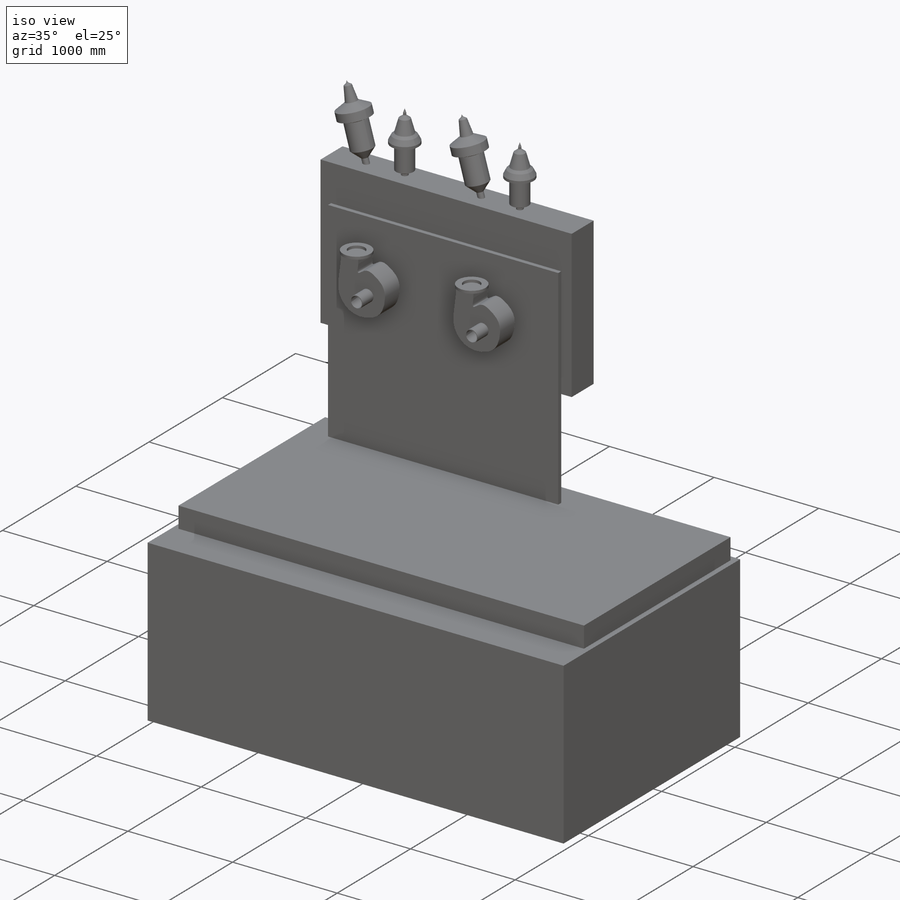
[diagram: iso view]
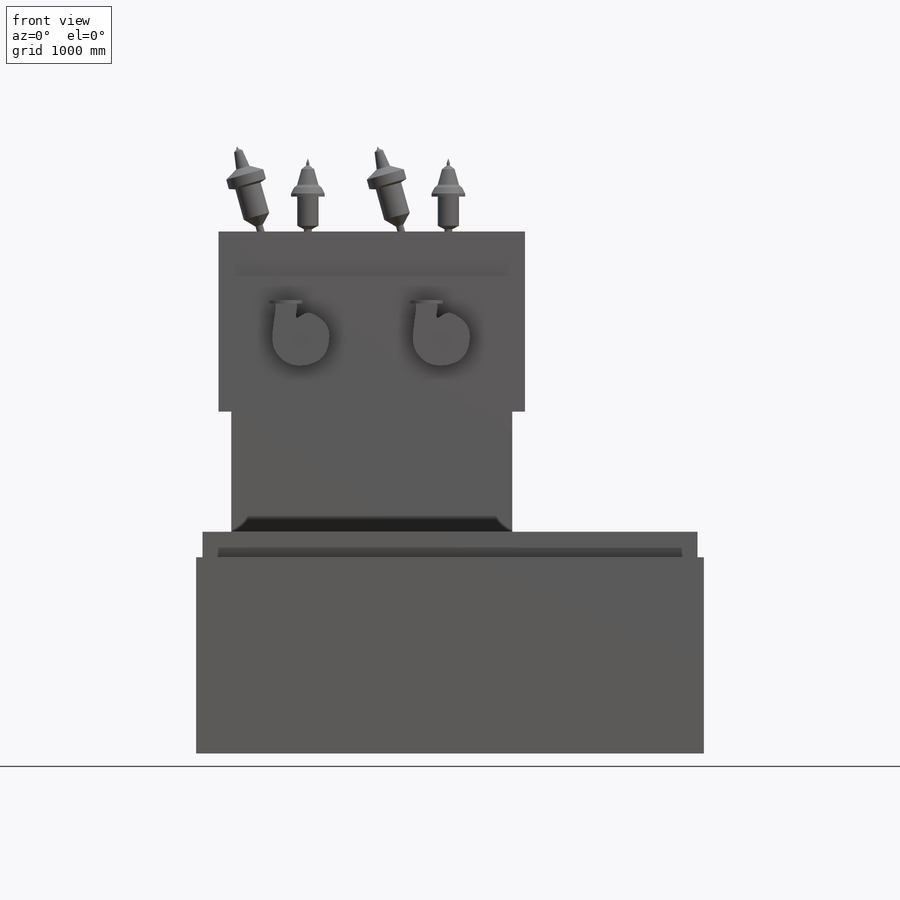
[diagram: front view]
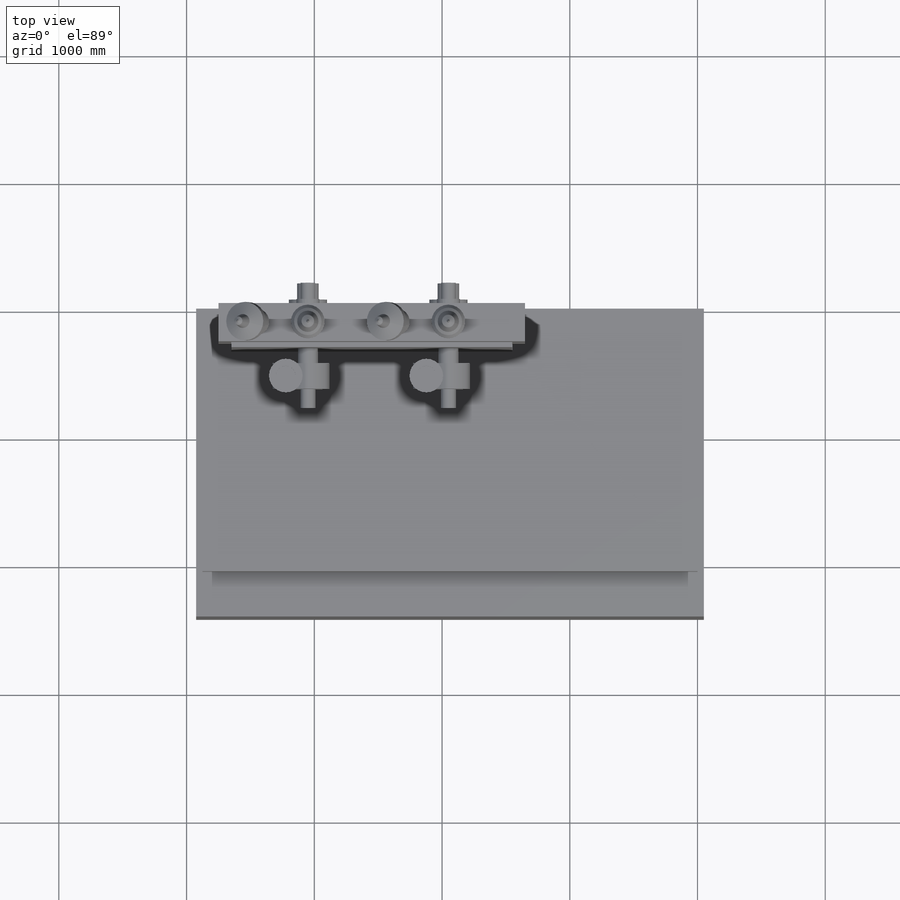
[diagram: top view]
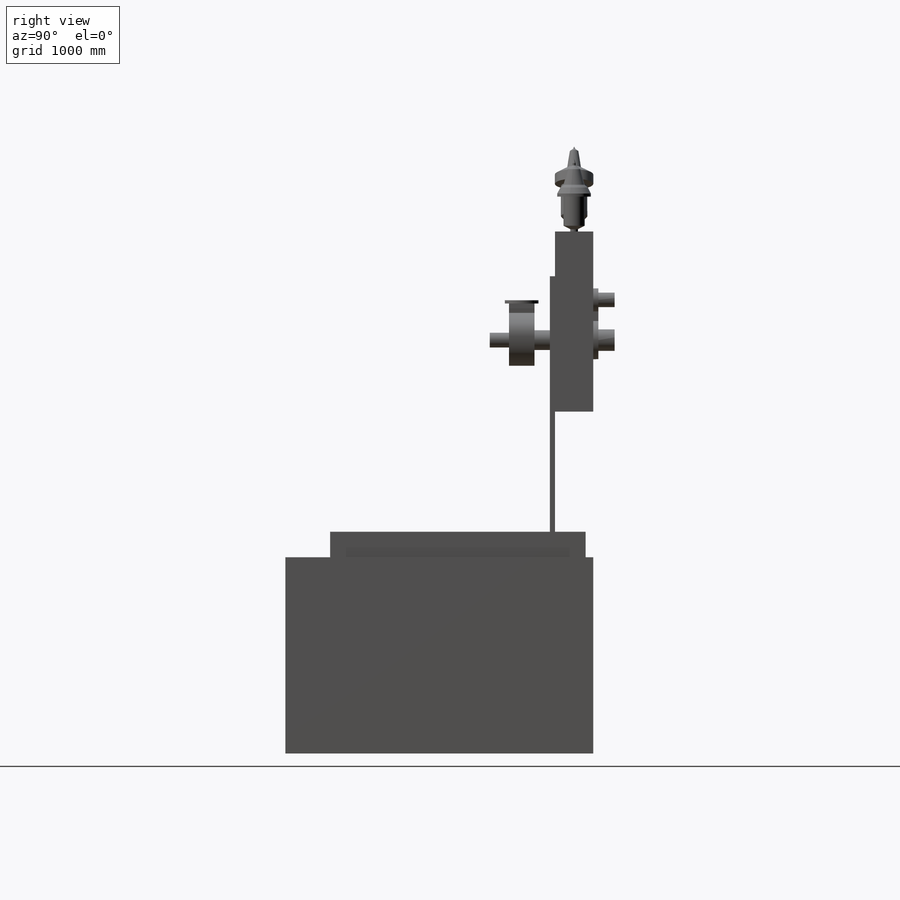
[diagram: right view]
SOLIDWORKS PART (.sldprt)
format: sldprt  version: not decoded by parser v0  size: 581,120 bytes
history: native  units: mm
features: sketch x15, extrude x13, revolve x2, pattern_linear x2, material x1, shell x1, plane x1 (+16 scaffold rows collapsed)
feature tree (51):
  scaffold x16  (default folders/planes/origin — collapsed)
  material  "Material <not specified>"
  sketch  "Sketch1"  dims[D1=100.0mm D2=3975.0mm D3=3050.0mm]
  extrude  "Extrude1"  Depth=2410mm
  sketch  "Sketch2"  dims[D1=60.0mm D2=50.0mm D3=50.0mm D4=2000.0mm]
  extrude  "Extrude2"  Depth=200mm
  sketch  "Sketch3"  dims[c1.D1=1410.0mm c1.D2=2400.0mm c1.D3=1350.0mm c1.D4=1700.0mm c1.D5=850.0mm c2.D4=1500.0mm]
  extrude  "Extrude3"  Depth=300mm
  shell  "Shell1"  Thickness=10mm
  sketch  "Sketch4"  dims[D1=100.0mm D2=100.0mm D3=350.0mm]
  extrude  "Extrude4"  Depth=40mm
  sketch  "Sketch5"  dims[D2=500.0mm D5=250.0mm D1=850.0mm D3=1700.0mm D4=315.0mm D6=1500.0mm]
  extrude  "Extrude5"  Depth=30mm
  sketch  "Sketch6"  dims[c1.D1=~1836.58115mm c1.D2=2115.0mm c2.D1=~813.41885mm c2.D2=~278.41885mm c3.D1=~278.41885mm]
  extrude  "Extrude6"  Depth=250mm
  sketch  "Sketch7"  dims[c1.D1=~149.41296mm c1.D2=~90.335637mm c2.D1=550.0mm c2.D2=865.0mm c2.D3=30.0mm c2.D4=15.0mm c2.D5=535.0mm c2.D6=315.0mm]
  extrude  "Extrude7"  Depth=50mm
  sketch  "Sketch8"  dims[D1=168.0mm D2=154.0mm D3=114.3mm D4=97.2mm]
  extrude  "Extrude8"  Depth=127mm
  plane  "Plane1"  Offset=150mm
  sketch  "Sketch9"
  revolve  "Revolve2"  Angle=360deg
  sketch  "Sketch10"  dims[c1.D1=390.0mm c1.D2=~32.484919mm c1.D3=~1055.120513mm c1.D4=~1675.749642mm c1.D5=~73.951281mm c2.D5=~179.84091deg]
  revolve  "Revolve3"  Angle=360deg
  pattern_linear  "LPattern1"  Count1=2 Count2=1 Spacing1=1100mm Spacing2=10mm
  sketch  "Sketch11"
  extrude  "Extrude9"  Depth=530mm
  sketch  "Sketch12"
  extrude  "Extrude10"  Depth=200mm
  sketch  "Sketch13"  dims[D1=114.8mm D2=5.6mm]
  extrude  "Extrude11"  Depth=150mm
  sketch  "Sketch14"  dims[D1=154.0mm]
  extrude  "Extrude12"  Depth=25mm
  pattern_linear  "LPattern2"  Count1=2 Count2=1 Spacing1=1100mm Spacing2=10mm
  sketch  "Sketch15"  dims[D1=0.0mm]
  extrude  "Extrude13"  Depth=1436.15mm
decode coverage: 30 of 33 modeling features carry decoded parameters
note: ~ marks probable driven/reference dimensions
note: suppression state not decoded; provenance and decode notes live in map.json
